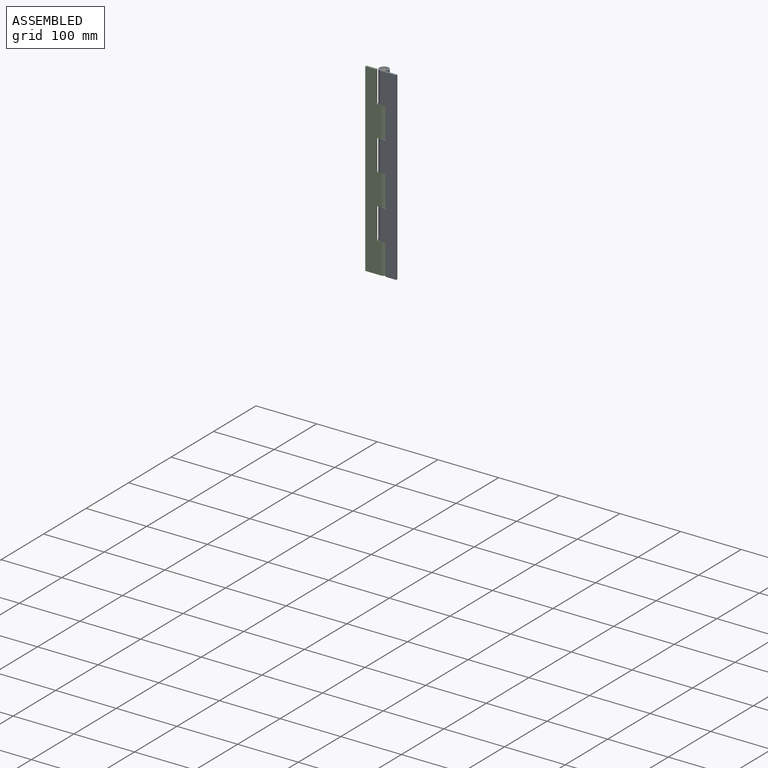
[diagram: assembled view]
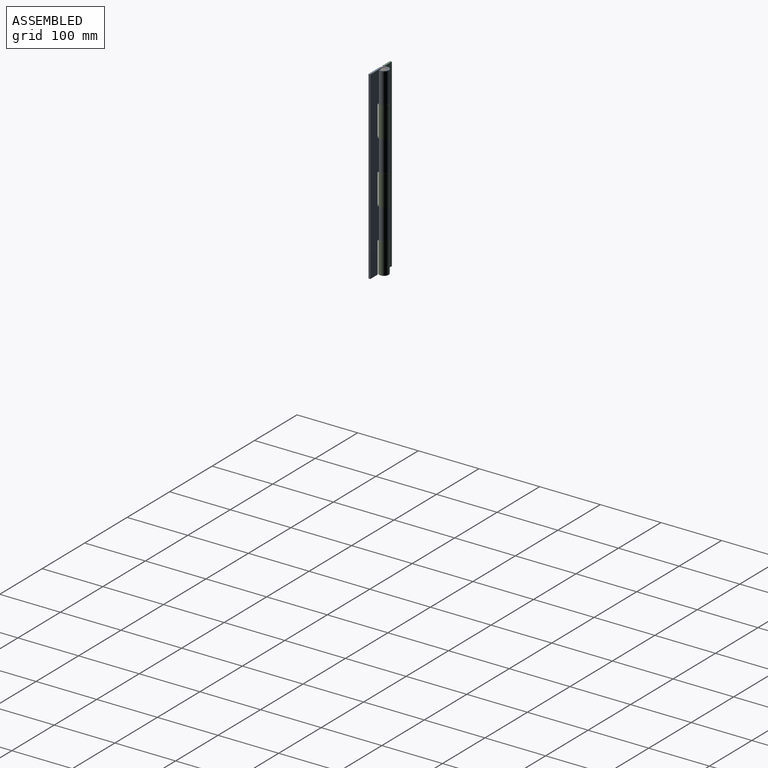
[diagram: assembled view, second angle]
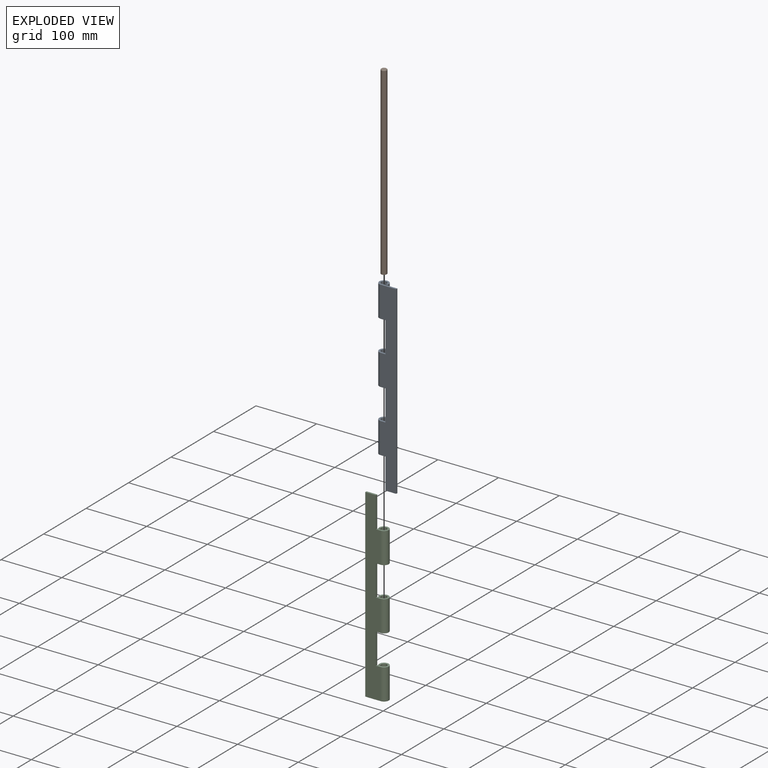
[diagram: exploded view]
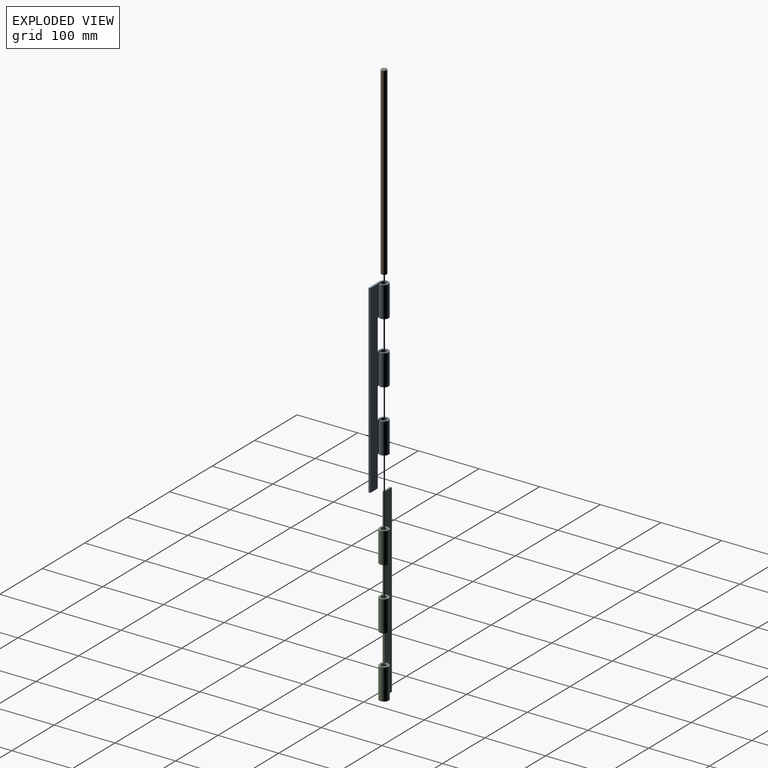
[diagram: exploded view, second angle]
ASSEMBLY  parts=3 mates=2
PART A: 22 faces, bbox 33.2x15.6x304.8 mm
  f0: plane 50.8x2.76mm, normal (-0.42,-0.91,0), area 154.8mm2, adj f4,f9,f10,f11
  f1: plane 50.8x2.76mm, normal (-0.42,-0.91,0), area 154.8mm2, adj f3,f13,f14,f15
  f2: plane 50.8x2.76mm, normal (-0.42,-0.91,0), area 154.8mm2, adj f5,f6,f7,f16
  f3: cylinder r=4.76mm len=50.8mm, axis (0,0,-1), area 1245.7mm2, adj f1,f13,f15,f20
  f4: cylinder r=4.76mm len=50.8mm, axis (0,0,-1), area 1245.7mm2, adj f0,f9,f11,f20
  f5: cylinder r=4.76mm len=50.8mm, axis (0,0,-1), area 1245.7mm2, adj f2,f7,f16,f20
  f6: cylinder r=7.81mm len=50.8mm, axis (0,0,-1), area 2042.9mm2, adj f2,f7,f16,f19
  f7: plane 15.62x15.62mm, normal (0,0,1), area 122.5mm2, adj f2,f5,f6,f8,f19,f20
  f8: plane 50.8x3.05mm, normal (-1,0,0), area 154.8mm2, adj f7,f9,f19,f20
  f9: plane 15.62x15.62mm, normal (0,0,-1), area 122.5mm2, adj f0,f4,f8,f10,f19,f20
  f10: cylinder r=7.81mm len=50.8mm, axis (0,0,-1), area 2042.9mm2, adj f0,f9,f11,f19
  f11: plane 15.62x15.62mm, normal (0,0,1), area 122.5mm2, adj f0,f4,f10,f12,f19,f20
  f12: plane 50.8x3.05mm, normal (-1,0,0), area 154.8mm2, adj f11,f13,f19,f20
  f13: plane 15.62x15.62mm, normal (0,0,-1), area 122.5mm2, adj f1,f3,f12,f14,f19,f20
  f14: cylinder r=7.81mm len=50.8mm, axis (0,0,-1), area 2042.9mm2, adj f1,f13,f15,f19
  f15: plane 33.21x15.62mm, normal (0,0,1), area 176.1mm2, adj f1,f3,f14,f17,f19,f20
  f16: plane 15.62x15.62mm, normal (0,0,-1), area 122.5mm2, adj f2,f5,f6,f18,f19,f20
  f17: plane 304.8x3.05mm, normal (1,0,0), area 929mm2, adj f15,f19,f20,f21
  f18: plane 50.8x3.05mm, normal (-1,0,0), area 154.8mm2, adj f16,f19,f20,f21
  f19: plane 304.8x25.4mm, normal (0,-1,0), area 6551.6mm2, adj f6,f7,f8,f9,f10,f11,f12,f13
  f20: plane 304.8x25.4mm, normal (0,1,0), area 6551.6mm2, adj f3,f4,f5,f7,f8,f9,f11,f12
  f21: plane 17.59x3.05mm, normal (0,0,-1), area 53.6mm2, adj f17,f18,f19,f20
PART B: 4 faces, bbox 9.5x9.5x304.8 mm
  f0: cone r=3.81mm half-angle=45deg, axis (0,0,-1), area 36.3mm2, adj f1,f2
  f1: cylinder r=4.76mm len=303.85mm, axis (0,0,-1), area 9092.2mm2, adj f0,f3
  f2: plane 7.62x7.62mm, normal (0,0,1), area 45.6mm2, adj f0
  f3: plane 9.53x9.53mm, normal (0,0,-1), area 71.3mm2, adj f1
PART C: 23 faces, bbox 33.2x15.6x304.8 mm
  f0: cylinder r=4.76mm len=50.8mm, axis (0,0,-1), area 1245.7mm2, adj f11,f19,f20,f21
  f1: cylinder r=7.81mm len=50.8mm, axis (0,0,-1), area 2042.9mm2, adj f10,f19,f20,f21
  f2: cylinder r=4.76mm len=50.8mm, axis (0,0,-1), area 1245.7mm2, adj f11,f16,f17,f18
  f3: cylinder r=7.81mm len=50.8mm, axis (0,0,-1), area 2042.9mm2, adj f10,f16,f17,f18
  f4: cylinder r=4.76mm len=50.8mm, axis (0,0,-1), area 1245.7mm2, adj f11,f13,f14,f15
  f5: cylinder r=7.81mm len=50.8mm, axis (0,0,-1), area 2042.9mm2, adj f10,f13,f14,f15
  f6: plane 50.8x3.05mm, normal (1,0,0), area 154.8mm2, adj f10,f11,f12,f20
  f7: plane 50.8x3.05mm, normal (1,0,0), area 154.8mm2, adj f10,f11,f17,f21
  f8: plane 50.8x3.05mm, normal (1,0,0), area 154.8mm2, adj f10,f11,f14,f18
  f9: plane 304.8x3.05mm, normal (-1,0,0), area 929mm2, adj f10,f11,f12,f22
  f10: plane 304.8x25.4mm, normal (0,-1,0), area 6547.7mm2, adj f1,f3,f5,f6,f7,f8,f9,f12
  f11: plane 304.8x25.4mm, normal (0,1,0), area 6547.7mm2, adj f0,f2,f4,f6,f7,f8,f9,f12
  f12: plane 17.56x3.05mm, normal (0,0,1), area 53.5mm2, adj f6,f9,f10,f11
  f13: plane 50.8x2.76mm, normal (0.42,-0.91,0), area 154.8mm2, adj f4,f5,f14,f15
  f14: plane 15.65x15.62mm, normal (0,0,1), area 122.5mm2, adj f4,f5,f8,f10,f11,f13
  f15: plane 15.65x15.62mm, normal (0,0,-1), area 122.5mm2, adj f4,f5,f10,f11,f13,f22
  f16: plane 50.8x2.76mm, normal (0.42,-0.91,0), area 154.8mm2, adj f2,f3,f17,f18
  f17: plane 15.65x15.62mm, normal (0,0,1), area 122.5mm2, adj f2,f3,f7,f10,f11,f16
  f18: plane 15.65x15.62mm, normal (0,0,-1), area 122.5mm2, adj f2,f3,f8,f10,f11,f16
  f19: plane 50.8x2.76mm, normal (0.42,-0.91,0), area 154.8mm2, adj f0,f1,f20,f21
  f20: plane 15.65x15.62mm, normal (0,0,1), area 122.5mm2, adj f0,f1,f6,f10,f11,f19
  f21: plane 15.65x15.62mm, normal (0,0,-1), area 122.5mm2, adj f0,f1,f7,f10,f11,f19
  f22: plane 17.56x3.05mm, normal (0,0,-1), area 53.5mm2, adj f9,f10,f11,f15
PLACE A t=(-114.92,23.19,-25.64)mm
PLACE B t=(-114.92,23.19,-25.7)mm
PLACE C t=(-114.92,23.19,-25.7)mm fixed
MATE cylindrical C.f0 <-> B.f0  axis (0,0,-1) through (-114.92,23.19,-25.7)mm
MATE cylindrical A.f3 <-> B.f0  axis (0,0,-1) through (-114.92,23.19,279.16)mm
